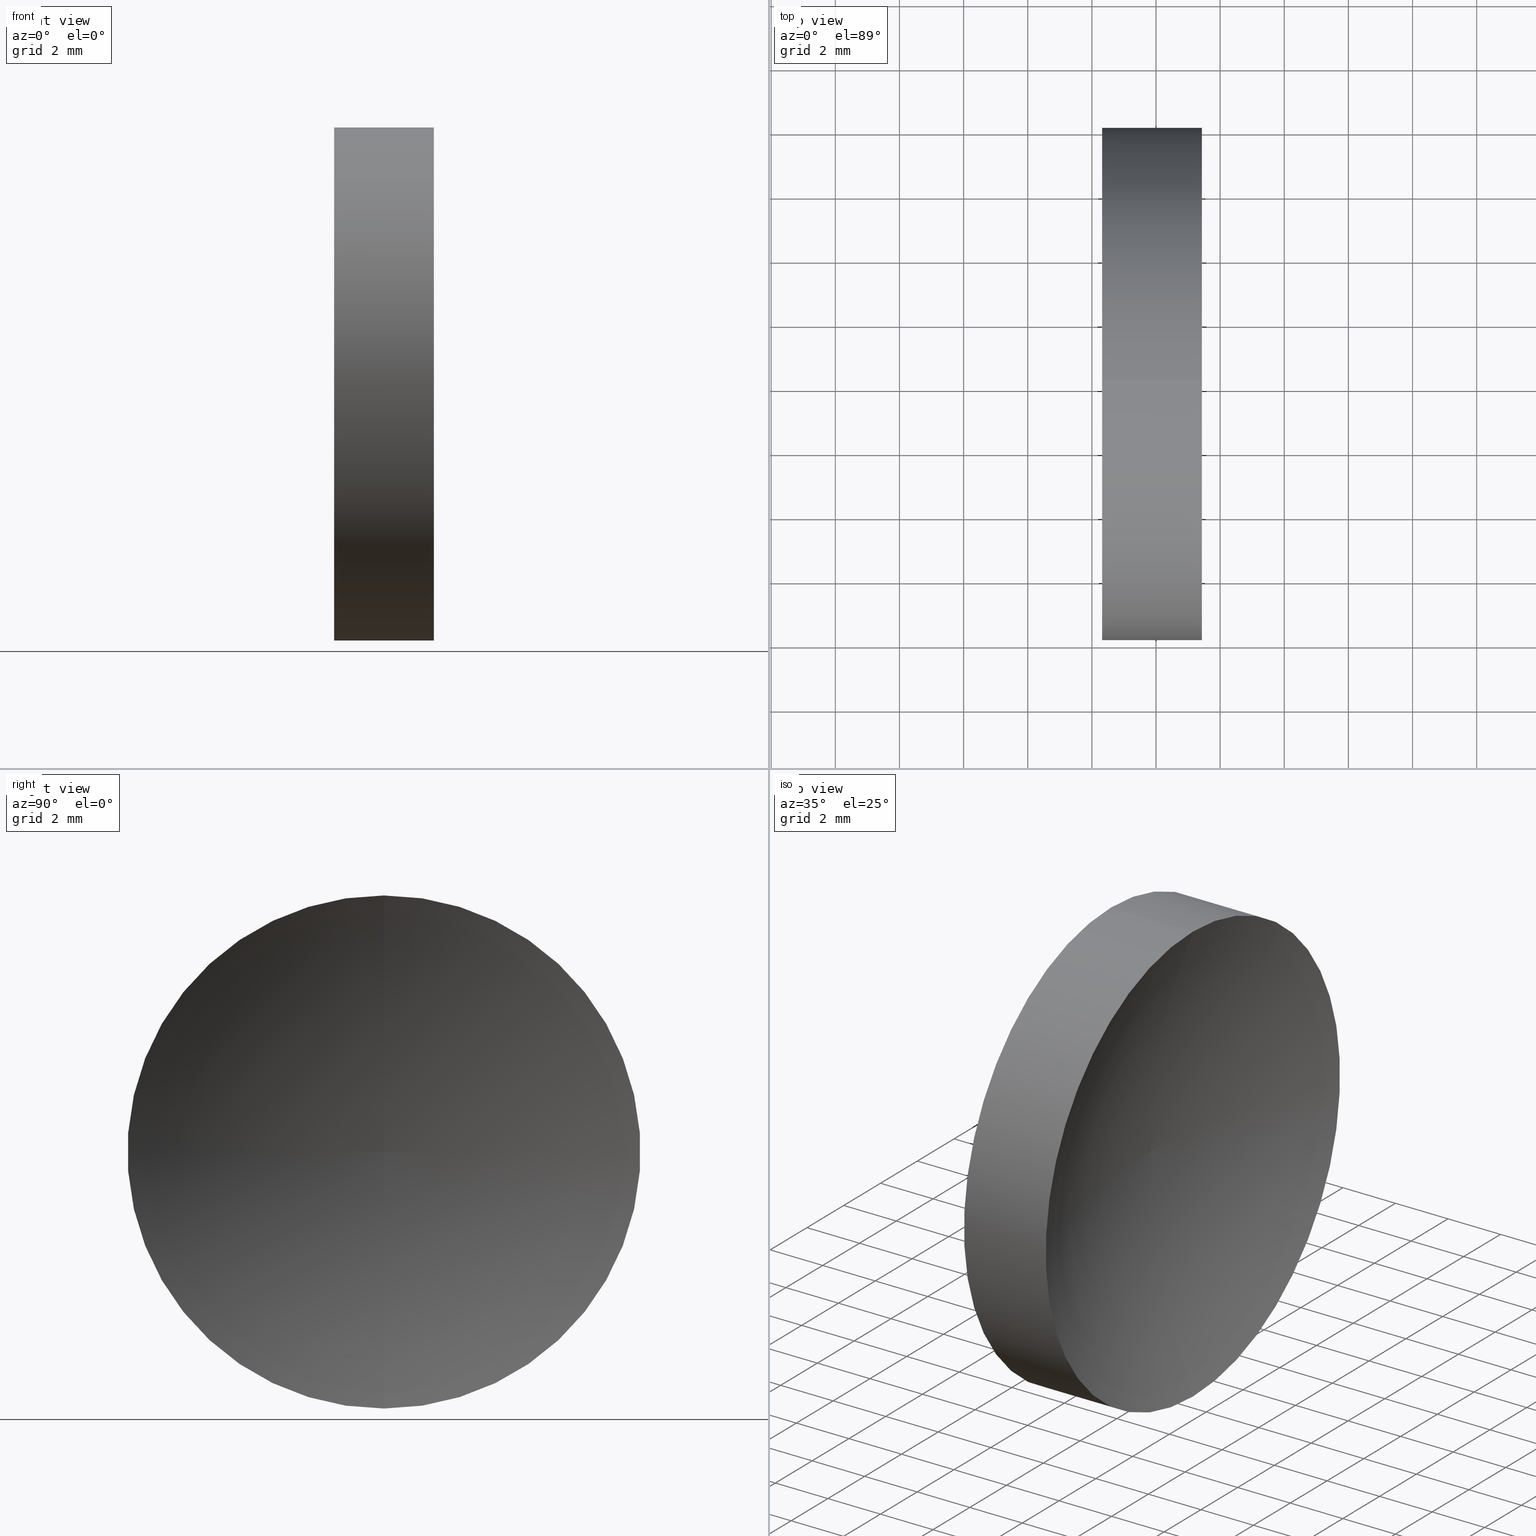
[diagram: canonical four-view strip — front | top / right | iso, engineering-drawing reading convention]
A machine part, canonical four-view strip (front | top / right | iso — engineering-drawing reading convention). The complete STEP part file that produces these views, byte-faithful:
ISO-10303-21;
HEADER;
FILE_DESCRIPTION (( 'STEP AP214' ),
    '1' );
FILE_NAME ('120022.STEP',
    '2019-06-14T09:15:02',
    ( '' ),
    ( '' ),
    'SwSTEP 2.0',
    'SolidWorks 2016',
    '' );
FILE_SCHEMA (( 'AUTOMOTIVE_DESIGN' ));
ENDSEC;

DATA;
#1 =( GEOMETRIC_REPRESENTATION_CONTEXT ( 3 ) GLOBAL_UNCERTAINTY_ASSIGNED_CONTEXT ( ( #163 ) ) GLOBAL_UNIT_ASSIGNED_CONTEXT ( ( #52, #135, #125 ) ) REPRESENTATION_CONTEXT ( 'NONE', 'WORKASPACE' ) );
#2 = UNCERTAINTY_MEASURE_WITH_UNIT (LENGTH_MEASURE( 1.000000000000000100E-005 ), #90, 'distance_accuracy_value', 'NONE');
#3 =( LENGTH_UNIT ( ) NAMED_UNIT ( * ) SI_UNIT ( .MILLI., .METRE. ) );
#4 = SURFACE_STYLE_USAGE ( .BOTH. , #44 ) ;
#5 = CARTESIAN_POINT ( 'NONE',  ( 47.43122569665025200, 26.08904114919495900, 7.999999999999996400 ) ) ;
#6 = CLOSED_SHELL ( 'NONE', ( #133, #33, #32, #106, #84 ) ) ;
#7 = EDGE_LOOP ( 'NONE', ( #66, #54, #115 ) ) ;
#8 = CARTESIAN_POINT ( 'NONE',  ( 44.31915269315436500, 26.08904114919495900, 0.0000000000000000000 ) ) ;
#9 = DIRECTION ( 'NONE',  ( 0.0000000000000000000, 0.0000000000000000000, 1.000000000000000000 ) ) ;
#10 = DIRECTION ( 'NONE',  ( 0.0000000000000000000, -1.000000000000000000, 0.0000000000000000000 ) ) ;
#11 = AXIS2_PLACEMENT_3D ( 'NONE', #8, #67, #152 ) ;
#12 = APPLICATION_PROTOCOL_DEFINITION ( 'draft international standard', 'automotive_design', 1998, #77 ) ;
#13 = DIRECTION ( 'NONE',  ( -1.000000000000000000, -0.0000000000000000000, -0.0000000000000000000 ) ) ;
#14 = PRODUCT_CONTEXT ( 'NONE', #77, 'mechanical' ) ;
#15 = SHAPE_DEFINITION_REPRESENTATION ( #99, #131 ) ;
#16 = CARTESIAN_POINT ( 'NONE',  ( 45.81915269315437200, 26.08904114919495900, 0.0000000000000000000 ) ) ;
#17 = VERTEX_POINT ( 'NONE', #74 ) ;
#18 = STYLED_ITEM ( 'NONE', ( #34 ), #131 ) ;
#19 = VERTEX_POINT ( 'NONE', #75 ) ;
#20 = AXIS2_PLACEMENT_3D ( 'NONE', #154, #116, #129 ) ;
#21 = CIRCLE ( 'NONE', #111, 8.000000000000003600 ) ;
#22 = AXIS2_PLACEMENT_3D ( 'NONE', #166, #151, #36 ) ;
#23 = FACE_OUTER_BOUND ( 'NONE', #96, .T. ) ;
#24 = PRESENTATION_LAYER_ASSIGNMENT (  '', '', ( #18 ) ) ;
#25 = CIRCLE ( 'NONE', #105, 20.65000000000000200 ) ;
#26 = CARTESIAN_POINT ( 'NONE',  ( 42.44986111413682300, 26.08904114919495900, 8.000000000000000000 ) ) ;
#27 = PRESENTATION_STYLE_ASSIGNMENT (( #37 ) ) ;
#28 = DIRECTION ( 'NONE',  ( 0.0000000000000000000, -1.680119589323783900E-016, 1.000000000000000000 ) ) ;
#29 = CARTESIAN_POINT ( 'NONE',  ( 42.44986111413682300, 26.08904114919495900, -8.000000000000000000 ) ) ;
#30 =( NAMED_UNIT ( * ) SI_UNIT ( $, .STERADIAN. ) SOLID_ANGLE_UNIT ( ) );
#31 = DIRECTION ( 'NONE',  ( 0.0000000000000000000, 0.0000000000000000000, 1.000000000000000000 ) ) ;
#32 = ADVANCED_FACE ( 'NONE', ( #38 ), #118, .F. ) ;
#33 = ADVANCED_FACE ( 'NONE', ( #23 ), #145, .F. ) ;
#34 = PRESENTATION_STYLE_ASSIGNMENT (( #4 ) ) ;
#35 =( GEOMETRIC_REPRESENTATION_CONTEXT ( 3 ) GLOBAL_UNCERTAINTY_ASSIGNED_CONTEXT ( ( #147 ) ) GLOBAL_UNIT_ASSIGNED_CONTEXT ( ( #3, #71, #42 ) ) REPRESENTATION_CONTEXT ( 'NONE', 'WORKASPACE' ) );
#36 = DIRECTION ( 'NONE',  ( 0.0000000000000000000, 0.0000000000000000000, 1.000000000000000000 ) ) ;
#37 = SURFACE_STYLE_USAGE ( .BOTH. , #110 ) ;
#38 = FACE_OUTER_BOUND ( 'NONE', #7, .T. ) ;
#39 = STYLED_ITEM ( 'NONE', ( #27 ), #95 ) ;
#40 = DIRECTION ( 'NONE',  ( 0.0000000000000000000, 0.0000000000000000000, 1.000000000000000000 ) ) ;
#41 = VECTOR ( 'NONE', #89, 1000.000000000000000 ) ;
#42 =( NAMED_UNIT ( * ) SI_UNIT ( $, .STERADIAN. ) SOLID_ANGLE_UNIT ( ) );
#43 = CYLINDRICAL_SURFACE ( 'NONE', #91, 8.000000000000000000 ) ;
#44 = SURFACE_SIDE_STYLE ('',( #79 ) ) ;
#45 = CIRCLE ( 'NONE', #22, 7.999999999999996400 ) ;
#46 = ORIENTED_EDGE ( 'NONE', *, *, #70, .F. ) ;
#47 = PRESENTATION_LAYER_ASSIGNMENT (  '', '', ( #39 ) ) ;
#48 = LINE ( 'NONE', #29, #41 ) ;
#49 = PRODUCT_DEFINITION_FORMATION_WITH_SPECIFIED_SOURCE ( '�κ�', '', #107, .NOT_KNOWN. ) ;
#50 = CARTESIAN_POINT ( 'NONE',  ( 66.46915265469672800, 26.08904114919495900, 0.001260278013337501300 ) ) ;
#51 = CIRCLE ( 'NONE', #160, 20.65000000000000200 ) ;
#52 =( LENGTH_UNIT ( ) NAMED_UNIT ( * ) SI_UNIT ( .MILLI., .METRE. ) );
#53 = FILL_AREA_STYLE_COLOUR ( '', #112 ) ;
#54 = ORIENTED_EDGE ( 'NONE', *, *, #87, .F. ) ;
#55 = DIRECTION ( 'NONE',  ( -1.000000000000000000, -0.0000000000000000000, -0.0000000000000000000 ) ) ;
#56 = DIRECTION ( 'NONE',  ( -0.0000000000000000000, 1.000000000000000000, 1.224646799147353200E-016 ) ) ;
#57 = APPLICATION_PROTOCOL_DEFINITION ( 'draft international standard', 'automotive_design', 1998, #128 ) ;
#58 = FACE_OUTER_BOUND ( 'NONE', #85, .T. ) ;
#59 = MECHANICAL_DESIGN_GEOMETRIC_PRESENTATION_REPRESENTATION (  '', ( #39 ), #1 ) ;
#60 = ORIENTED_EDGE ( 'NONE', *, *, #104, .F. ) ;
#61 = EDGE_LOOP ( 'NONE', ( #94, #63 ) ) ;
#62 = AXIS2_PLACEMENT_3D ( 'NONE', #113, #13, #40 ) ;
#63 = ORIENTED_EDGE ( 'NONE', *, *, #123, .T. ) ;
#64 = DIRECTION ( 'NONE',  ( -1.000000000000000000, -0.0000000000000000000, -0.0000000000000000000 ) ) ;
#65 = DIRECTION ( 'NONE',  ( 0.0000000000000000000, 0.0000000000000000000, 1.000000000000000000 ) ) ;
#66 = ORIENTED_EDGE ( 'NONE', *, *, #101, .F. ) ;
#67 = DIRECTION ( 'NONE',  ( 1.000000000000000000, 0.0000000000000000000, 0.0000000000000000000 ) ) ;
#68 = DIRECTION ( 'NONE',  ( -1.000000000000000000, -0.0000000000000000000, -0.0000000000000000000 ) ) ;
#69 = CARTESIAN_POINT ( 'NONE',  ( 44.31915269315436500, 26.08904114919495900, 0.0000000000000000000 ) ) ;
#70 = EDGE_CURVE ( 'NONE', #122, #134, #51, .T. ) ;
#71 =( NAMED_UNIT ( * ) PLANE_ANGLE_UNIT ( ) SI_UNIT ( $, .RADIAN. ) );
#72 = CYLINDRICAL_SURFACE ( 'NONE', #62, 8.000000000000000000 ) ;
#73 = ORIENTED_EDGE ( 'NONE', *, *, #101, .T. ) ;
#74 = CARTESIAN_POINT ( 'NONE',  ( 44.31915269315436500, 26.08904114919495900, -8.000000000000003600 ) ) ;
#75 = CARTESIAN_POINT ( 'NONE',  ( 47.43122569665025200, 26.08904114919495900, -7.999999999999996400 ) ) ;
#76 = ORIENTED_EDGE ( 'NONE', *, *, #123, .F. ) ;
#77 = APPLICATION_CONTEXT ( 'automotive_design' ) ;
#78 = DIRECTION ( 'NONE',  ( 0.0000000000000000000, 0.0000000000000000000, 1.000000000000000000 ) ) ;
#79 = SURFACE_STYLE_FILL_AREA ( #139 ) ;
#80 = DIRECTION ( 'NONE',  ( 1.000000000000000000, 0.0000000000000000000, 0.0000000000000000000 ) ) ;
#81 = DIRECTION ( 'NONE',  ( -1.000000000000000000, -0.0000000000000000000, -0.0000000000000000000 ) ) ;
#82 = MECHANICAL_DESIGN_GEOMETRIC_PRESENTATION_REPRESENTATION (  '', ( #18 ), #126 ) ;
#83 = EDGE_LOOP ( 'NONE', ( #158, #149, #153, #119 ) ) ;
#84 = ADVANCED_FACE ( 'NONE', ( #161 ), #121, .F. ) ;
#85 = EDGE_LOOP ( 'NONE', ( #150, #124, #100, #76 ) ) ;
#86 = CARTESIAN_POINT ( 'NONE',  ( 66.46915265469672800, 26.08904114919495900, 0.0000000000000000000 ) ) ;
#87 = EDGE_CURVE ( 'NONE', #122, #19, #45, .T. ) ;
#88 = CIRCLE ( 'NONE', #130, 7.999999999999996400 ) ;
#89 = DIRECTION ( 'NONE',  ( -1.000000000000000000, -0.0000000000000000000, -0.0000000000000000000 ) ) ;
#90 =( LENGTH_UNIT ( ) NAMED_UNIT ( * ) SI_UNIT ( .MILLI., .METRE. ) );
#91 = AXIS2_PLACEMENT_3D ( 'NONE', #159, #81, #92 ) ;
#92 = DIRECTION ( 'NONE',  ( 0.0000000000000000000, 0.0000000000000000000, 1.000000000000000000 ) ) ;
#93 = VECTOR ( 'NONE', #68, 1000.000000000000000 ) ;
#94 = ORIENTED_EDGE ( 'NONE', *, *, #103, .T. ) ;
#95 = MANIFOLD_SOLID_BREP ( '��ת1', #6 ) ;
#96 = EDGE_LOOP ( 'NONE', ( #60, #73, #46 ) ) ;
#97 = VERTEX_POINT ( 'NONE', #136 ) ;
#98 = EDGE_CURVE ( 'NONE', #122, #97, #162, .T. ) ;
#99 = PRODUCT_DEFINITION_SHAPE ( 'NONE', 'NONE',  #155 ) ;
#100 = ORIENTED_EDGE ( 'NONE', *, *, #98, .T. ) ;
#101 = EDGE_CURVE ( 'NONE', #19, #134, #25, .T. ) ;
#102 =( NAMED_UNIT ( * ) PLANE_ANGLE_UNIT ( ) SI_UNIT ( $, .RADIAN. ) );
#103 = EDGE_CURVE ( 'NONE', #97, #17, #21, .T. ) ;
#104 = EDGE_CURVE ( 'NONE', #19, #122, #88, .T. ) ;
#105 = AXIS2_PLACEMENT_3D ( 'NONE', #114, #56, #28 ) ;
#106 = ADVANCED_FACE ( 'NONE', ( #58 ), #43, .T. ) ;
#107 = PRODUCT ( '120022', '120022', '', ( #14 ) ) ;
#108 = PRODUCT_DEFINITION_CONTEXT ( 'detailed design', #128, 'design' ) ;
#109 = SURFACE_STYLE_FILL_AREA ( #165 ) ;
#110 = SURFACE_SIDE_STYLE ('',( #109 ) ) ;
#111 = AXIS2_PLACEMENT_3D ( 'NONE', #69, #157, #141 ) ;
#112 = COLOUR_RGB ( '',1.000000000000000000, 1.000000000000000000, 1.000000000000000000 ) ;
#113 = CARTESIAN_POINT ( 'NONE',  ( 42.44986111413682300, 26.08904114919495900, 0.0000000000000000000 ) ) ;
#114 = CARTESIAN_POINT ( 'NONE',  ( 66.46915265469672800, 26.08904114919495900, -0.001260278013337501300 ) ) ;
#115 = ORIENTED_EDGE ( 'NONE', *, *, #70, .T. ) ;
#116 = DIRECTION ( 'NONE',  ( -1.000000000000000000, -0.0000000000000000000, -0.0000000000000000000 ) ) ;
#117 = PRODUCT_RELATED_PRODUCT_CATEGORY ( 'part', '', ( #107 ) ) ;
#118 = TOROIDAL_SURFACE ( 'NONE', #142, 0.001260278013337501300, 20.65000000000000200 ) ;
#119 = ORIENTED_EDGE ( 'NONE', *, *, #98, .F. ) ;
#120 = DIRECTION ( 'NONE',  ( -1.000000000000000000, -0.0000000000000000000, -0.0000000000000000000 ) ) ;
#121 = PLANE ( 'NONE',  #11 ) ;
#122 = VERTEX_POINT ( 'NONE', #5 ) ;
#123 = EDGE_CURVE ( 'NONE', #17, #97, #143, .T. ) ;
#124 = ORIENTED_EDGE ( 'NONE', *, *, #104, .T. ) ;
#125 =( NAMED_UNIT ( * ) SI_UNIT ( $, .STERADIAN. ) SOLID_ANGLE_UNIT ( ) );
#126 =( GEOMETRIC_REPRESENTATION_CONTEXT ( 3 ) GLOBAL_UNCERTAINTY_ASSIGNED_CONTEXT ( ( #2 ) ) GLOBAL_UNIT_ASSIGNED_CONTEXT ( ( #90, #102, #30 ) ) REPRESENTATION_CONTEXT ( 'NONE', 'WORKASPACE' ) );
#127 = FILL_AREA_STYLE_COLOUR ( '', #140 ) ;
#128 = APPLICATION_CONTEXT ( 'automotive_design' ) ;
#129 = DIRECTION ( 'NONE',  ( 0.0000000000000000000, 0.0000000000000000000, 1.000000000000000000 ) ) ;
#130 = AXIS2_PLACEMENT_3D ( 'NONE', #138, #55, #78 ) ;
#131 = ADVANCED_BREP_SHAPE_REPRESENTATION ( '120022', ( #95, #144 ), #35 ) ;
#132 = FACE_OUTER_BOUND ( 'NONE', #83, .T. ) ;
#133 = ADVANCED_FACE ( 'NONE', ( #132 ), #72, .T. ) ;
#134 = VERTEX_POINT ( 'NONE', #16 ) ;
#135 =( NAMED_UNIT ( * ) PLANE_ANGLE_UNIT ( ) SI_UNIT ( $, .RADIAN. ) );
#136 = CARTESIAN_POINT ( 'NONE',  ( 44.31915269315436500, 26.08904114919495900, 8.000000000000003600 ) ) ;
#137 = EDGE_CURVE ( 'NONE', #19, #17, #48, .T. ) ;
#138 = CARTESIAN_POINT ( 'NONE',  ( 47.43122569665025200, 26.08904114919495900, 0.0000000000000000000 ) ) ;
#139 = FILL_AREA_STYLE ('',( #127 ) ) ;
#140 = COLOUR_RGB ( '',1.000000000000000000, 1.000000000000000000, 1.000000000000000000 ) ;
#141 = DIRECTION ( 'NONE',  ( 0.0000000000000000000, 0.0000000000000000000, 1.000000000000000000 ) ) ;
#142 = AXIS2_PLACEMENT_3D ( 'NONE', #86, #120, #9 ) ;
#143 = CIRCLE ( 'NONE', #20, 8.000000000000003600 ) ;
#144 = AXIS2_PLACEMENT_3D ( 'NONE', #156, #31, #80 ) ;
#145 = TOROIDAL_SURFACE ( 'NONE', #148, 0.001260278013337501300, 20.65000000000000200 ) ;
#146 = CARTESIAN_POINT ( 'NONE',  ( 66.46915265469672800, 26.08904114919495900, 0.0000000000000000000 ) ) ;
#147 = UNCERTAINTY_MEASURE_WITH_UNIT (LENGTH_MEASURE( 1.000000000000000100E-005 ), #3, 'distance_accuracy_value', 'NONE');
#148 = AXIS2_PLACEMENT_3D ( 'NONE', #146, #64, #65 ) ;
#149 = ORIENTED_EDGE ( 'NONE', *, *, #137, .T. ) ;
#150 = ORIENTED_EDGE ( 'NONE', *, *, #137, .F. ) ;
#151 = DIRECTION ( 'NONE',  ( -1.000000000000000000, -0.0000000000000000000, -0.0000000000000000000 ) ) ;
#152 = DIRECTION ( 'NONE',  ( 0.0000000000000000000, 0.0000000000000000000, -1.000000000000000000 ) ) ;
#153 = ORIENTED_EDGE ( 'NONE', *, *, #103, .F. ) ;
#154 = CARTESIAN_POINT ( 'NONE',  ( 44.31915269315436500, 26.08904114919495900, 0.0000000000000000000 ) ) ;
#155 = PRODUCT_DEFINITION ( 'δ֪', '', #49, #108 ) ;
#156 = CARTESIAN_POINT ( 'NONE',  ( 0.0000000000000000000, 0.0000000000000000000, 0.0000000000000000000 ) ) ;
#157 = DIRECTION ( 'NONE',  ( -1.000000000000000000, -0.0000000000000000000, -0.0000000000000000000 ) ) ;
#158 = ORIENTED_EDGE ( 'NONE', *, *, #87, .T. ) ;
#159 = CARTESIAN_POINT ( 'NONE',  ( 42.44986111413682300, 26.08904114919495900, 0.0000000000000000000 ) ) ;
#160 = AXIS2_PLACEMENT_3D ( 'NONE', #50, #10, #164 ) ;
#161 = FACE_OUTER_BOUND ( 'NONE', #61, .T. ) ;
#162 = LINE ( 'NONE', #26, #93 ) ;
#163 = UNCERTAINTY_MEASURE_WITH_UNIT (LENGTH_MEASURE( 1.000000000000000100E-005 ), #52, 'distance_accuracy_value', 'NONE');
#164 = DIRECTION ( 'NONE',  ( 0.0000000000000000000, 0.0000000000000000000, -1.000000000000000000 ) ) ;
#165 = FILL_AREA_STYLE ('',( #53 ) ) ;
#166 = CARTESIAN_POINT ( 'NONE',  ( 47.43122569665025200, 26.08904114919495900, 0.0000000000000000000 ) ) ;
ENDSEC;
END-ISO-10303-21;
